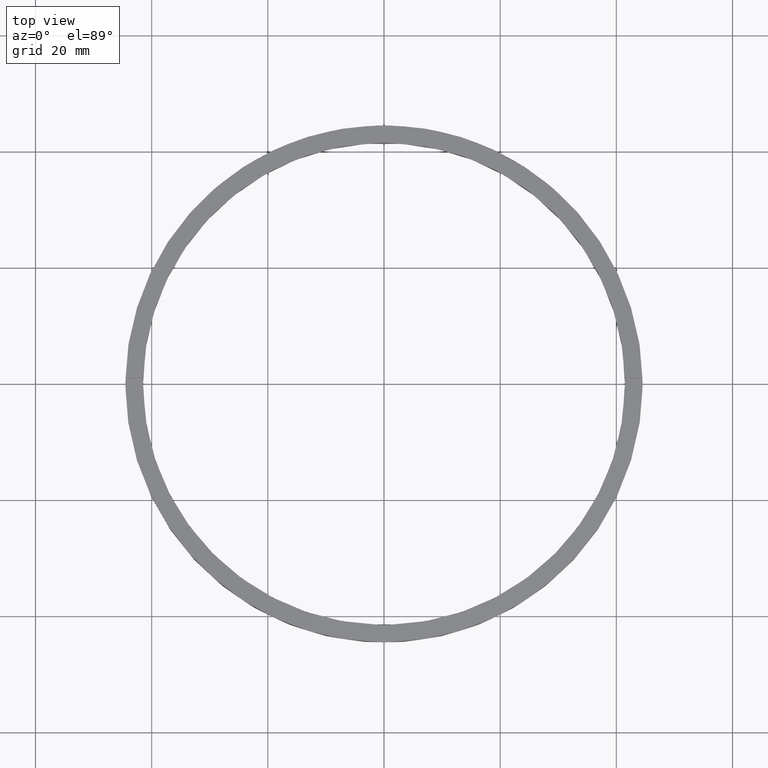
[diagram: clean part render]
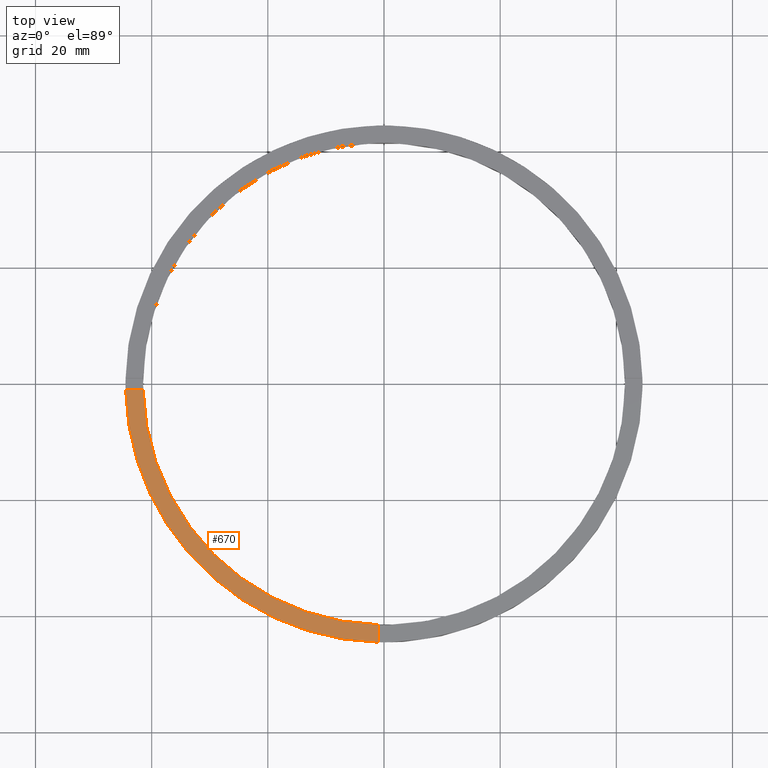
[diagram: same view with one face highlighted and labeled with its STEP entity id]
A machine part, top view. The second image highlights one B-rep face of the part: STEP entity #670.
In plain terms, the highlighted planar face has unit normal (0, 0, 1).
Its self-contained STEP definition (entity closure, byte-faithful):
#25 = ORIENTED_EDGE ( 'NONE', *, *, #309, .F. ) ;
#31 = AXIS2_PLACEMENT_3D ( 'NONE', #757, #39, #606 ) ;
#39 = DIRECTION ( 'NONE',  ( 0.000000000000000000, 0.000000000000000000, 1.000000000000000000 ) ) ;
#48 = CARTESIAN_POINT ( 'NONE',  ( -41.48795005781799716, -1.000000000000029088, 4.000000000000000000 ) ) ;
#55 = VERTEX_POINT ( 'NONE', #48 ) ;
#93 = VERTEX_POINT ( 'NONE', #123 ) ;
#121 = CIRCLE ( 'NONE', #31, 44.50000000000000711 ) ;
#123 = CARTESIAN_POINT ( 'NONE',  ( -1.000000000000158096, -44.48876262608345655, 4.000000000000000000 ) ) ;
#127 = EDGE_CURVE ( 'NONE', #299, #93, #121, .T. ) ;
#152 = VECTOR ( 'NONE', #477, 1000.000000000000000 ) ;
#159 = LINE ( 'NONE', #587, #152 ) ;
#179 = AXIS2_PLACEMENT_3D ( 'NONE', #311, #755, #373 ) ;
#180 = FACE_OUTER_BOUND ( 'NONE', #494, .T. ) ;
#234 = ORIENTED_EDGE ( 'NONE', *, *, #481, .F. ) ;
#239 = ORIENTED_EDGE ( 'NONE', *, *, #491, .F. ) ;
#265 = DIRECTION ( 'NONE',  ( 0.000000000000000000, 0.000000000000000000, 1.000000000000000000 ) ) ;
#299 = VERTEX_POINT ( 'NONE', #609 ) ;
#309 = EDGE_CURVE ( 'NONE', #55, #611, #647, .T. ) ;
#311 = CARTESIAN_POINT ( 'NONE',  ( 0.000000000000000000, 0.000000000000000000, 4.000000000000000000 ) ) ;
#353 = DIRECTION ( 'NONE',  ( 1.000000000000000000, 0.000000000000000000, -0.000000000000000000 ) ) ;
#364 = CARTESIAN_POINT ( 'NONE',  ( 0.000000000000000000, 0.000000000000000000, 4.000000000000000000 ) ) ;
#373 = DIRECTION ( 'NONE',  ( 1.000000000000000000, 0.000000000000000000, 0.000000000000000000 ) ) ;
#417 = VECTOR ( 'NONE', #541, 1000.000000000000000 ) ;
#446 = LINE ( 'NONE', #722, #417 ) ;
#477 = DIRECTION ( 'NONE',  ( 1.000000000000000000, 1.951563910473907735E-16, -0.000000000000000000 ) ) ;
#481 = EDGE_CURVE ( 'NONE', #299, #55, #159, .T. ) ;
#491 = EDGE_CURVE ( 'NONE', #611, #93, #446, .T. ) ;
#494 = EDGE_LOOP ( 'NONE', ( #239, #25, #234, #756 ) ) ;
#508 = PLANE ( 'NONE',  #534 ) ;
#534 = AXIS2_PLACEMENT_3D ( 'NONE', #364, #265, #353 ) ;
#541 = DIRECTION ( 'NONE',  ( 1.301042606982605074E-16, -1.000000000000000000, 0.000000000000000000 ) ) ;
#587 = CARTESIAN_POINT ( 'NONE',  ( -34.50000000000019185, -1.000000000000027756, 4.000000000000000000 ) ) ;
#606 = DIRECTION ( 'NONE',  ( 1.000000000000000000, 0.000000000000000000, 0.000000000000000000 ) ) ;
#609 = CARTESIAN_POINT ( 'NONE',  ( -44.48876262608345655, -1.000000000000029754, 4.000000000000000000 ) ) ;
#611 = VERTEX_POINT ( 'NONE', #634 ) ;
#634 = CARTESIAN_POINT ( 'NONE',  ( -1.000000000000158540, -41.48795005781799006, 4.000000000000000000 ) ) ;
#647 = CIRCLE ( 'NONE', #179, 41.50000000000000000 ) ;
#670 = ADVANCED_FACE ( 'NONE', ( #180 ), #508, .T. ) ;
#722 = CARTESIAN_POINT ( 'NONE',  ( -1.000000000000159428, -34.50000000000018474, 4.000000000000000000 ) ) ;
#755 = DIRECTION ( 'NONE',  ( 0.000000000000000000, 0.000000000000000000, 1.000000000000000000 ) ) ;
#756 = ORIENTED_EDGE ( 'NONE', *, *, #127, .T. ) ;
#757 = CARTESIAN_POINT ( 'NONE',  ( 0.000000000000000000, 0.000000000000000000, 4.000000000000000000 ) ) ;